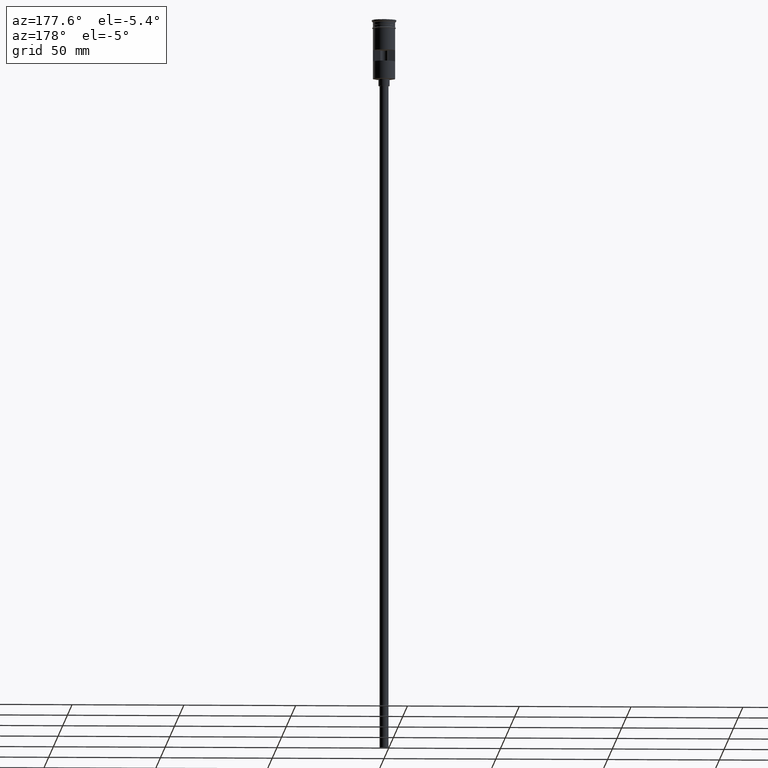
[diagram: clean part render]
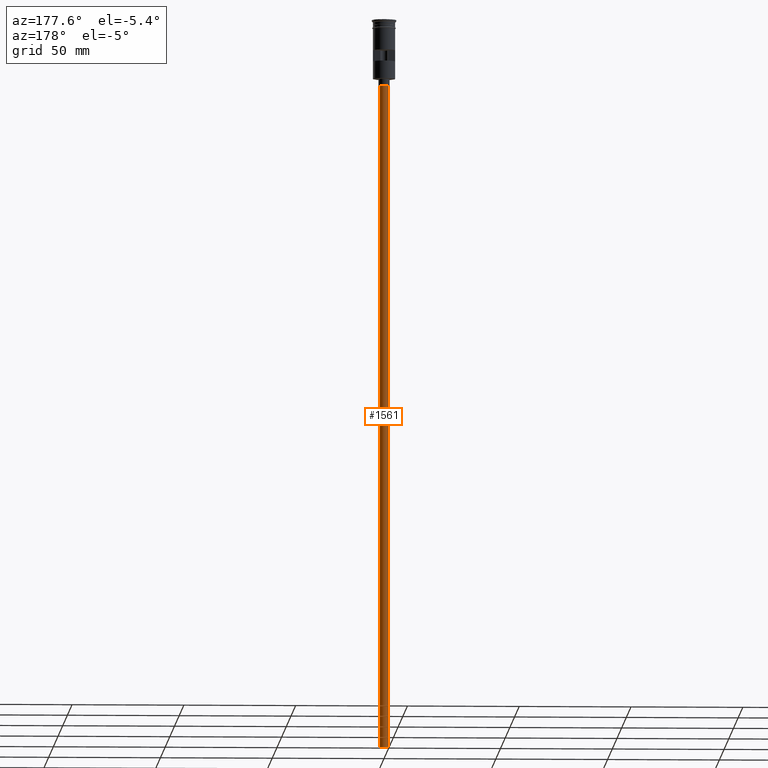
[diagram: same view with one face highlighted and labeled with its STEP entity id]
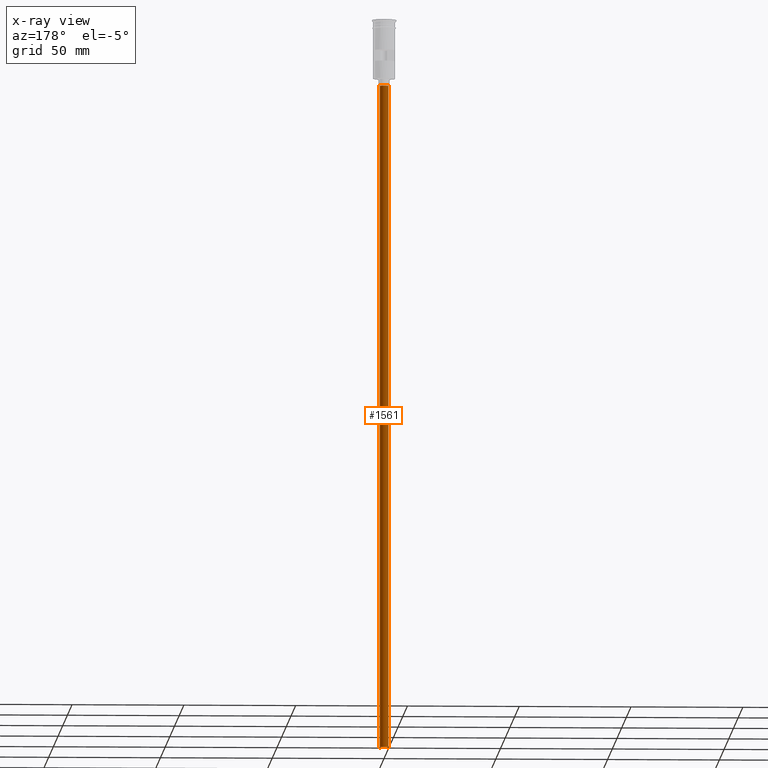
[diagram: x-ray of the same camera — body ghosted, the highlighted face saturated]
A machine part, auxiliary view. The second image highlights one B-rep face of the part: STEP entity #1561.
The next image is the same camera in x-ray: the body ghosted, the highlighted face saturated — about 0% of this face is hidden behind the body in this view.
In plain terms, the highlighted cylindrical surface (edge-blend (fillet) strip) has radius 2 mm, axis along (-0, -0, 1).
Its self-contained STEP definition (entity closure, byte-faithful):
#3 = EDGE_CURVE ( 'NONE', #1021, #1075, #960, .T. ) ;
#8 = ORIENTED_EDGE ( 'NONE', *, *, #1347, .F. ) ;
#34 = DIRECTION ( 'NONE',  ( 0.000000000000000000, 0.000000000000000000, -1.000000000000000000 ) ) ;
#59 = ORIENTED_EDGE ( 'NONE', *, *, #690, .T. ) ;
#143 = CARTESIAN_POINT ( 'NONE',  ( 2.000000000000000000, 0.000000000000000000, -29.50000000000000000 ) ) ;
#144 = DIRECTION ( 'NONE',  ( -1.000000000000000000, 0.000000000000000000, 0.000000000000000000 ) ) ;
#221 = CARTESIAN_POINT ( 'NONE',  ( 0.000000000000000000, 0.000000000000000000, -326.5000000000000000 ) ) ;
#255 = CARTESIAN_POINT ( 'NONE',  ( 0.000000000000000000, 0.000000000000000000, -326.5000000000000000 ) ) ;
#269 = AXIS2_PLACEMENT_3D ( 'NONE', #221, #1485, #1003 ) ;
#303 = CARTESIAN_POINT ( 'NONE',  ( 2.000000000000000000, 0.000000000000000000, -326.5000000000000000 ) ) ;
#374 = VECTOR ( 'NONE', #412, 1000.000000000000000 ) ;
#388 = CARTESIAN_POINT ( 'NONE',  ( -2.000000000000000000, 2.449293598294706414E-16, -326.5000000000000000 ) ) ;
#412 = DIRECTION ( 'NONE',  ( -0.000000000000000000, -0.000000000000000000, 1.000000000000000000 ) ) ;
#427 = LINE ( 'NONE', #1143, #1016 ) ;
#454 = FACE_OUTER_BOUND ( 'NONE', #1184, .T. ) ;
#583 = CYLINDRICAL_SURFACE ( 'NONE', #269, 2.000000000000000000 ) ;
#585 = EDGE_CURVE ( 'NONE', #797, #1285, #782, .T. ) ;
#690 = EDGE_CURVE ( 'NONE', #1021, #797, #1501, .T. ) ;
#737 = DIRECTION ( 'NONE',  ( 0.000000000000000000, 0.000000000000000000, -1.000000000000000000 ) ) ;
#782 = CIRCLE ( 'NONE', #1393, 2.000000000000000000 ) ;
#797 = VERTEX_POINT ( 'NONE', #1554 ) ;
#838 = ORIENTED_EDGE ( 'NONE', *, *, #3, .F. ) ;
#911 = ORIENTED_EDGE ( 'NONE', *, *, #585, .T. ) ;
#960 = CIRCLE ( 'NONE', #1345, 2.000000000000000000 ) ;
#1003 = DIRECTION ( 'NONE',  ( 1.000000000000000000, 0.000000000000000000, 0.000000000000000000 ) ) ;
#1016 = VECTOR ( 'NONE', #1449, 1000.000000000000000 ) ;
#1021 = VERTEX_POINT ( 'NONE', #1100 ) ;
#1075 = VERTEX_POINT ( 'NONE', #303 ) ;
#1100 = CARTESIAN_POINT ( 'NONE',  ( -2.000000000000000000, 2.449293598294706414E-16, -326.5000000000000000 ) ) ;
#1143 = CARTESIAN_POINT ( 'NONE',  ( 2.000000000000000000, 0.000000000000000000, -326.5000000000000000 ) ) ;
#1184 = EDGE_LOOP ( 'NONE', ( #838, #59, #911, #8 ) ) ;
#1225 = DIRECTION ( 'NONE',  ( -1.000000000000000000, 0.000000000000000000, 0.000000000000000000 ) ) ;
#1285 = VERTEX_POINT ( 'NONE', #143 ) ;
#1345 = AXIS2_PLACEMENT_3D ( 'NONE', #255, #737, #1225 ) ;
#1347 = EDGE_CURVE ( 'NONE', #1075, #1285, #427, .T. ) ;
#1393 = AXIS2_PLACEMENT_3D ( 'NONE', #1469, #34, #144 ) ;
#1449 = DIRECTION ( 'NONE',  ( -0.000000000000000000, -0.000000000000000000, 1.000000000000000000 ) ) ;
#1469 = CARTESIAN_POINT ( 'NONE',  ( 0.000000000000000000, 0.000000000000000000, -29.50000000000000000 ) ) ;
#1485 = DIRECTION ( 'NONE',  ( -0.000000000000000000, -0.000000000000000000, 1.000000000000000000 ) ) ;
#1501 = LINE ( 'NONE', #388, #374 ) ;
#1554 = CARTESIAN_POINT ( 'NONE',  ( -2.000000000000000000, 2.449293598294706414E-16, -29.50000000000000000 ) ) ;
#1561 = ADVANCED_FACE ( 'NONE', ( #454 ), #583, .T. ) ;